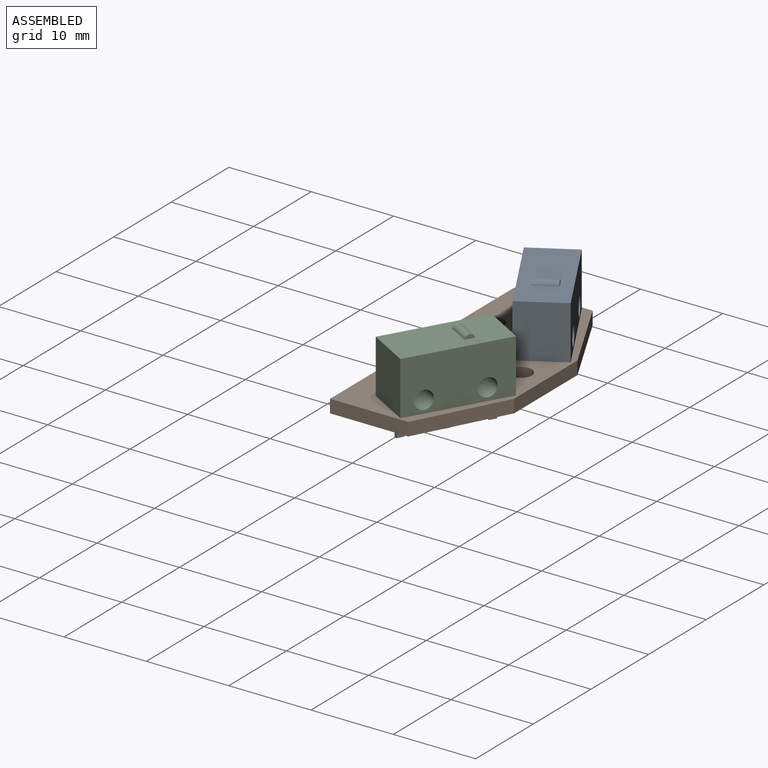
[diagram: assembled view]
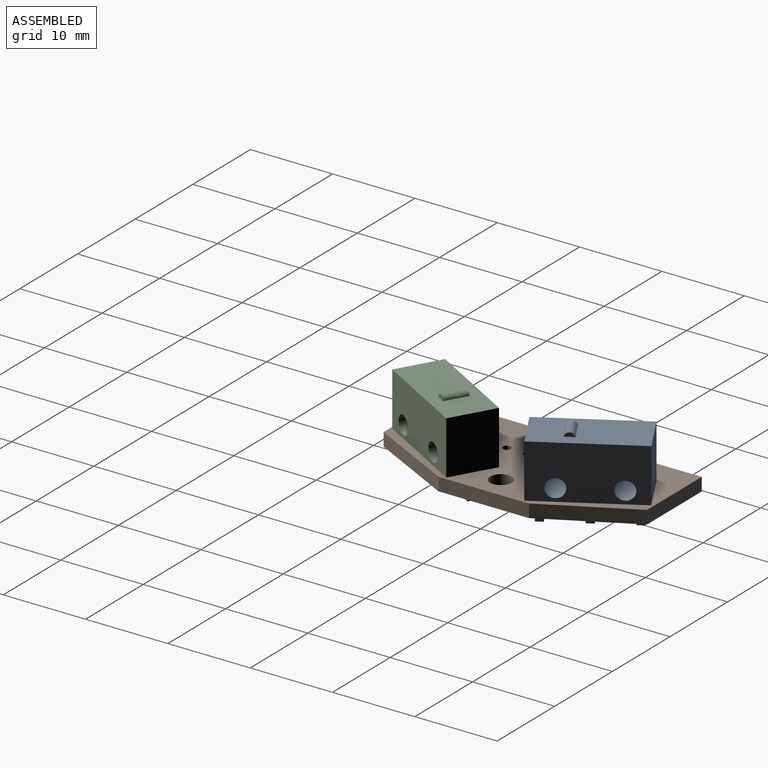
[diagram: assembled view, second angle]
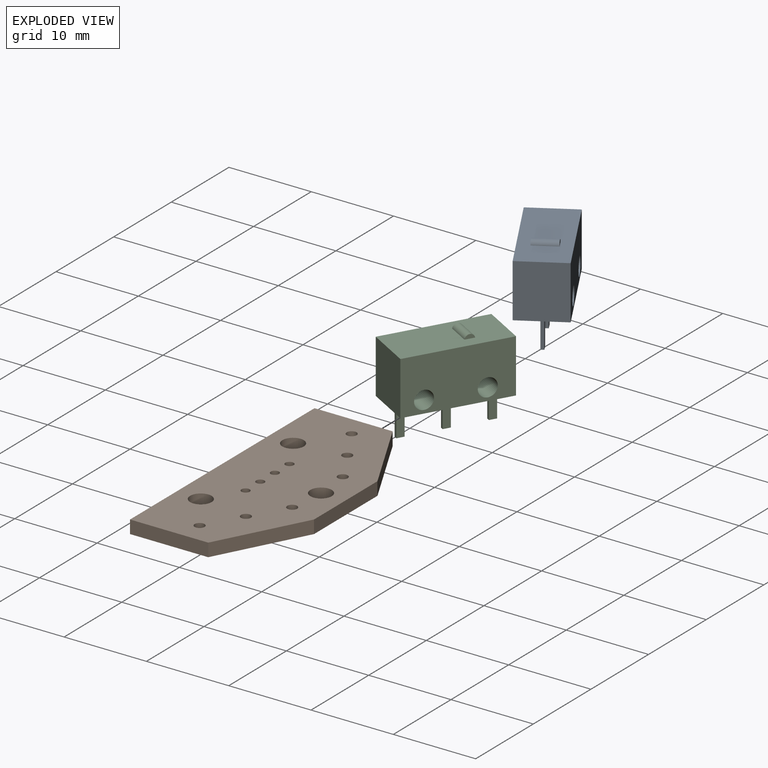
[diagram: exploded view]
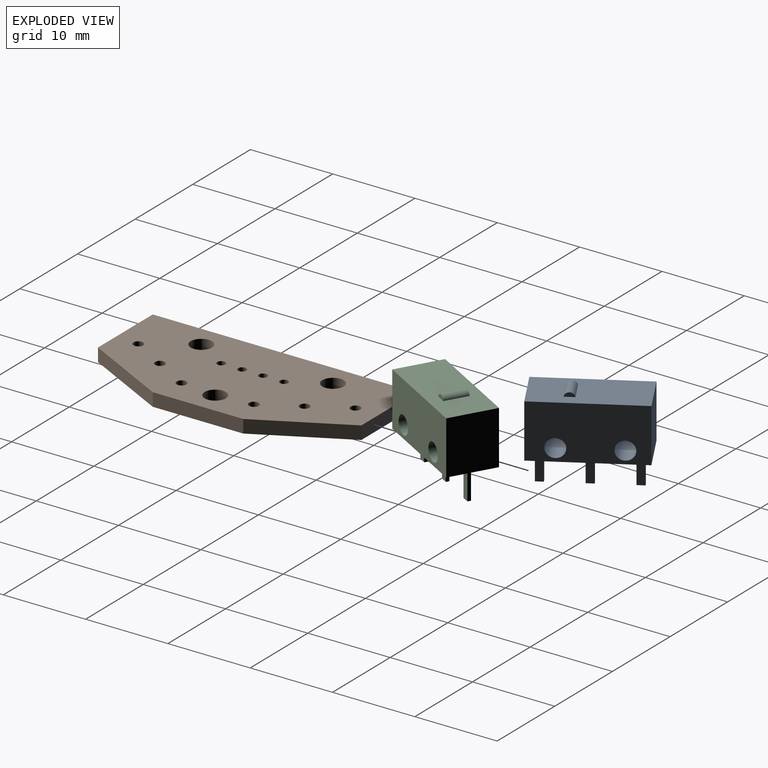
[diagram: exploded view, second angle]
ASSEMBLY  parts=3 mates=2
PART A: 26 faces, bbox 5.8x12.7x10.5 mm
  f0: plane 12.7x6.5mm, normal (-1,0,0), area 74.9mm2, adj f1,f3,f4,f5,f24,f25
  f1: plane 6.5x5.8mm, normal (0,-1,0), area 37.7mm2, adj f0,f2,f4,f5
  f2: plane 12.7x6.5mm, normal (1,0,0), area 74.9mm2, adj f1,f3,f4,f5,f24,f25
  f3: plane 6.5x5.8mm, normal (0,1,0), area 37.7mm2, adj f0,f2,f4,f5
  f4: plane 12.7x5.8mm, normal (0,0,1), area 70.2mm2, adj f0,f1,f2,f3,f21,f22,f23
  f5: plane 12.7x5.8mm, normal (0,0,-1), area 72.6mm2, adj f0,f1,f2,f3,f6,f7,f8,f9
  f6: plane 3.5x0.4mm, normal (0,1,0), area 1.4mm2, adj f5,f7,f9,f10
  f7: plane 3.5x0.9mm, normal (1,0,0), area 3.2mm2, adj f5,f6,f8,f10
  f8: plane 3.5x0.4mm, normal (0,-1,0), area 1.4mm2, adj f5,f7,f9,f10
  f9: plane 3.5x0.9mm, normal (-1,0,0), area 3.2mm2, adj f5,f6,f8,f10
  f10: plane 0.9x0.4mm, normal (0,0,-1), area 0.4mm2, adj f6,f7,f8,f9
  f11: plane 3.5x0.9mm, normal (1,0,0), area 3.1mm2, adj f5,f12,f14,f15
  f12: plane 3.5x0.4mm, normal (0,-1,0), area 1.4mm2, adj f5,f11,f13,f15
  f13: plane 3.5x0.9mm, normal (-1,0,0), area 3.1mm2, adj f5,f12,f14,f15
  f14: plane 3.5x0.4mm, normal (0,1,0), area 1.4mm2, adj f5,f11,f13,f15
  f15: plane 0.9x0.4mm, normal (0,0,-1), area 0.4mm2, adj f11,f12,f13,f14
  f16: plane 3.5x0.9mm, normal (1,0,0), area 3.2mm2, adj f5,f17,f19,f20
  f17: plane 3.5x0.4mm, normal (0,-1,0), area 1.4mm2, adj f5,f16,f18,f20
  f18: plane 3.5x0.9mm, normal (-1,0,0), area 3.2mm2, adj f5,f17,f19,f20
  f19: plane 3.5x0.4mm, normal (0,1,0), area 1.4mm2, adj f5,f16,f18,f20
  f20: plane 0.9x0.4mm, normal (0,0,-1), area 0.4mm2, adj f16,f17,f18,f19
  f21: cylinder r=0.6mm len=2.9mm, axis (-1,0,0), area 4.9mm2, adj f4,f22,f23
  f22: plane 1.18x0.5mm, normal (1,0,0), area 0.4mm2, adj f4,f21
  f23: plane 1.18x0.5mm, normal (-1,0,0), area 0.4mm2, adj f4,f21
  f24: cylinder r=1.1mm len=5.8mm, axis (1,0,0), area 40.1mm2, adj f0,f2
  f25: cylinder r=1.1mm len=5.8mm, axis (1,0,0), area 40.1mm2, adj f0,f2
PART B: 21 faces, bbox 15x32x1.6 mm
  f0: plane 10.5x5.5mm, normal (0.89,0.46,0), area 19mm2, adj f1,f2,f19,f20
  f1: plane 11x1.6mm, normal (1,0,0), area 17.6mm2, adj f0,f3,f19,f20
  f2: plane 9.5x1.6mm, normal (0,1,0), area 15.2mm2, adj f0,f4,f19,f20
  f3: plane 10.5x5.5mm, normal (0.89,-0.46,0), area 19mm2, adj f1,f5,f19,f20
  f4: plane 32x1.6mm, normal (-1,0,0), area 51.2mm2, adj f2,f5,f19,f20
  f5: plane 9.5x1.6mm, normal (0,-1,0), area 15.2mm2, adj f3,f4,f19,f20
  f6: cylinder r=0.6mm len=1.6mm, axis (0,0,1), area 6mm2, adj f19,f20
  f7: cylinder r=0.5mm len=1.6mm, axis (0,0,1), area 5mm2, adj f19,f20
  f8: cylinder r=0.5mm len=1.6mm, axis (0,0,1), area 5mm2, adj f19,f20
  f9: cylinder r=0.5mm len=1.6mm, axis (0,0,1), area 5mm2, adj f19,f20
  f10: cylinder r=0.6mm len=1.6mm, axis (0,0,1), area 6mm2, adj f19,f20
  f11: cylinder r=1.3mm len=2.6mm, axis (0,0,1), area 13.1mm2, adj f19,f20
  f12: cylinder r=0.6mm len=1.6mm, axis (0,0,1), area 6mm2, adj f19,f20
  f13: cylinder r=0.5mm len=1.6mm, axis (0,0,1), area 5mm2, adj f19,f20
  f14: cylinder r=1.3mm len=2.6mm, axis (0,0,1), area 13.1mm2, adj f19,f20
  f15: cylinder r=0.6mm len=1.6mm, axis (0,0,1), area 6mm2, adj f19,f20
  f16: cylinder r=0.6mm len=1.6mm, axis (0,0,1), area 6mm2, adj f19,f20
  f17: cylinder r=1.3mm len=2.6mm, axis (0,0,1), area 13.1mm2, adj f19,f20
  f18: cylinder r=0.6mm len=1.6mm, axis (0,0,1), area 6mm2, adj f19,f20
  f19: plane 32x15mm, normal (0,0,1), area 396.4mm2, adj f0,f1,f2,f3,f4,f5,f6,f7
  f20: plane 32x15mm, normal (0,0,-1), area 396.4mm2, adj f0,f1,f2,f3,f4,f5,f6,f7
PART C: same geometry as A
PLACE A rot(axis=(0,0,-1),150deg) t=(23.53,8.79,0)mm
PLACE B at identity fixed
PLACE C rot(axis=(0,0,-1),30deg) t=(23.53,-8.79,0)mm
MATE revolute A.f5 <-> B.f15  axis (0,0,-1) through (23.53,8.79,0)mm
MATE revolute C.f5 <-> B.f10  axis (0,0,-1) through (23.53,-8.79,0)mm
